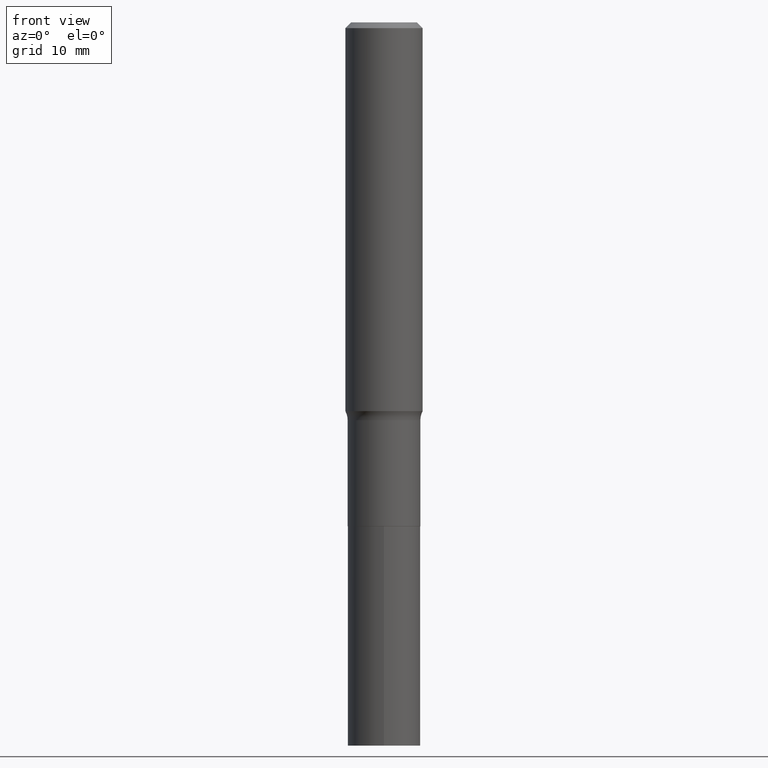
[diagram: clean part render]
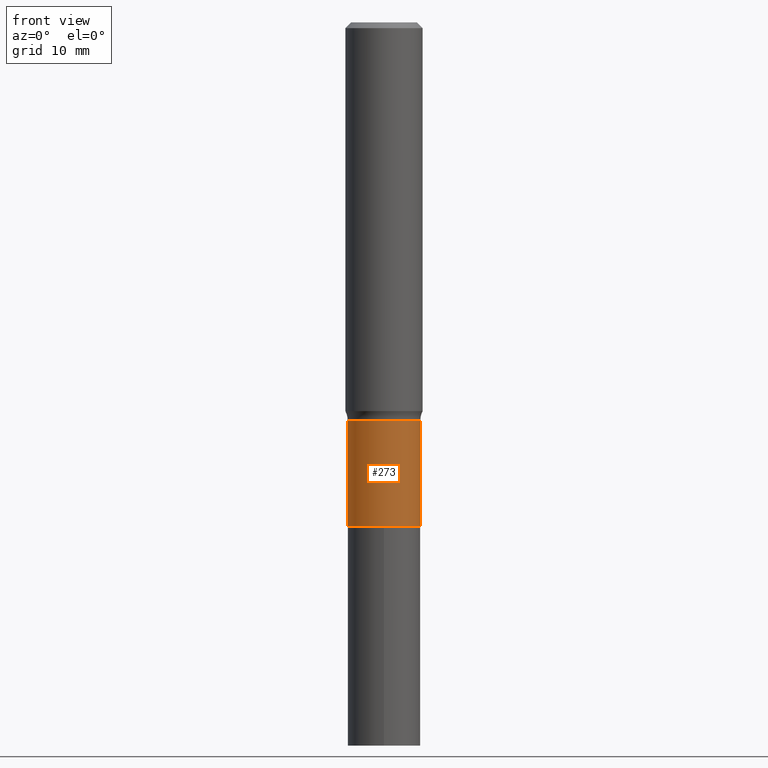
[diagram: same view with one face highlighted and labeled with its STEP entity id]
A machine part, front view. The second image highlights one B-rep face of the part: STEP entity #273.
In plain terms, the highlighted cylindrical surface (edge-blend (fillet) strip) has radius 3.7706 mm, axis along (-0, 0, 1).
Its self-contained STEP definition (entity closure, byte-faithful):
#34 = AXIS2_PLACEMENT_3D ( 'NONE', #272, #86, #52 ) ;
#35 = VECTOR ( 'NONE', #352, 39.37007874015748143 ) ;
#52 = DIRECTION ( 'NONE',  ( 1.000000000000000000, -6.982962677686264344E-15, 0.000000000000000000 ) ) ;
#62 = DIRECTION ( 'NONE',  ( -2.445468806185136597E-29, 3.491481338843145583E-15, 1.000000000000000000 ) ) ;
#83 = AXIS2_PLACEMENT_3D ( 'NONE', #387, #62, #102 ) ;
#86 = DIRECTION ( 'NONE',  ( -2.445468806185136597E-29, 3.491481338843145583E-15, 1.000000000000000000 ) ) ;
#94 = DIRECTION ( 'NONE',  ( -2.445468806185136877E-29, 3.491481338843145188E-15, 1.000000000000000000 ) ) ;
#96 = EDGE_CURVE ( 'NONE', #340, #165, #127, .T. ) ;
#97 = VERTEX_POINT ( 'NONE', #174 ) ;
#102 = DIRECTION ( 'NONE',  ( 1.000000000000000000, -6.982962677686262766E-15, 0.000000000000000000 ) ) ;
#103 = VERTEX_POINT ( 'NONE', #421 ) ;
#124 = CARTESIAN_POINT ( 'NONE',  ( 0.1484499999999999431, -1.036620809502525896E-15, 7.238684423669065009E-30 ) ) ;
#127 = CIRCLE ( 'NONE', #83, 0.1484499999999999709 ) ;
#165 = VERTEX_POINT ( 'NONE', #235 ) ;
#174 = CARTESIAN_POINT ( 'NONE',  ( 0.1484499999999999431, -6.707833948185445637E-15, -1.624299999999999633 ) ) ;
#192 = EDGE_CURVE ( 'NONE', #165, #97, #274, .T. ) ;
#193 = EDGE_CURVE ( 'NONE', #103, #97, #430, .T. ) ;
#235 = CARTESIAN_POINT ( 'NONE',  ( 0.1484499999999999709, -8.216153886565684674E-15, -2.056299999999999795 ) ) ;
#255 = CARTESIAN_POINT ( 'NONE',  ( -0.1484499999999999431, 1.054800691235868322E-15, -7.302159141483405952E-30 ) ) ;
#272 = CARTESIAN_POINT ( 'NONE',  ( 3.972174981886516039E-29, -5.671213138682920530E-15, -1.624299999999999633 ) ) ;
#273 = ADVANCED_FACE ( 'NONE', ( #301 ), #439, .T. ) ;
#274 = LINE ( 'NONE', #124, #369 ) ;
#296 = EDGE_CURVE ( 'NONE', #340, #103, #357, .T. ) ;
#298 = AXIS2_PLACEMENT_3D ( 'NONE', #392, #427, #361 ) ;
#301 = FACE_OUTER_BOUND ( 'NONE', #363, .T. ) ;
#304 = ORIENTED_EDGE ( 'NONE', *, *, #192, .T. ) ;
#330 = ORIENTED_EDGE ( 'NONE', *, *, #96, .T. ) ;
#340 = VERTEX_POINT ( 'NONE', #386 ) ;
#352 = DIRECTION ( 'NONE',  ( -2.445468806185136877E-29, 3.491481338843145188E-15, 1.000000000000000000 ) ) ;
#357 = LINE ( 'NONE', #255, #35 ) ;
#361 = DIRECTION ( 'NONE',  ( 1.000000000000000000, -6.982962677686266711E-15, 4.876176775795936353E-29 ) ) ;
#363 = EDGE_LOOP ( 'NONE', ( #465, #330, #304, #393 ) ) ;
#369 = VECTOR ( 'NONE', #94, 39.37007874015748143 ) ;
#386 = CARTESIAN_POINT ( 'NONE',  ( -0.1484499999999999986, -5.370572416637170741E-15, -2.056299999999999795 ) ) ;
#387 = CARTESIAN_POINT ( 'NONE',  ( 5.028617506158495847E-29, -7.179533077063158778E-15, -2.056299999999999795 ) ) ;
#392 = CARTESIAN_POINT ( 'NONE',  ( 0.000000000000000000, 0.000000000000000000, 0.000000000000000000 ) ) ;
#393 = ORIENTED_EDGE ( 'NONE', *, *, #193, .F. ) ;
#421 = CARTESIAN_POINT ( 'NONE',  ( -0.1484499999999999431, -5.370572416637171529E-15, -1.624299999999999633 ) ) ;
#427 = DIRECTION ( 'NONE',  ( -2.445468806185136597E-29, 3.491481338843145583E-15, 1.000000000000000000 ) ) ;
#430 = CIRCLE ( 'NONE', #34, 0.1484499999999999431 ) ;
#439 = CYLINDRICAL_SURFACE ( 'NONE', #298, 0.1484499999999999431 ) ;
#465 = ORIENTED_EDGE ( 'NONE', *, *, #296, .F. ) ;